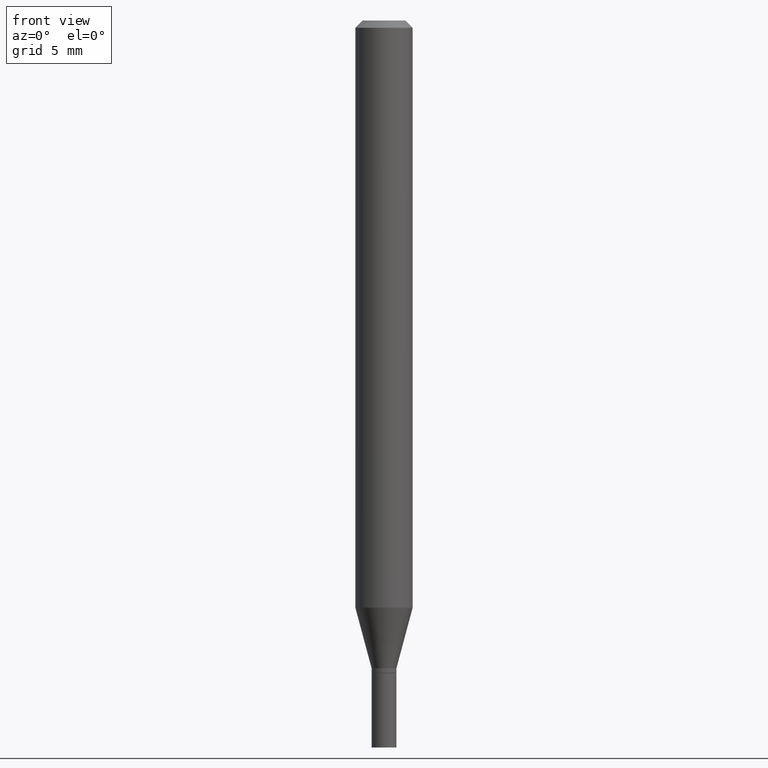
[diagram: clean part render]
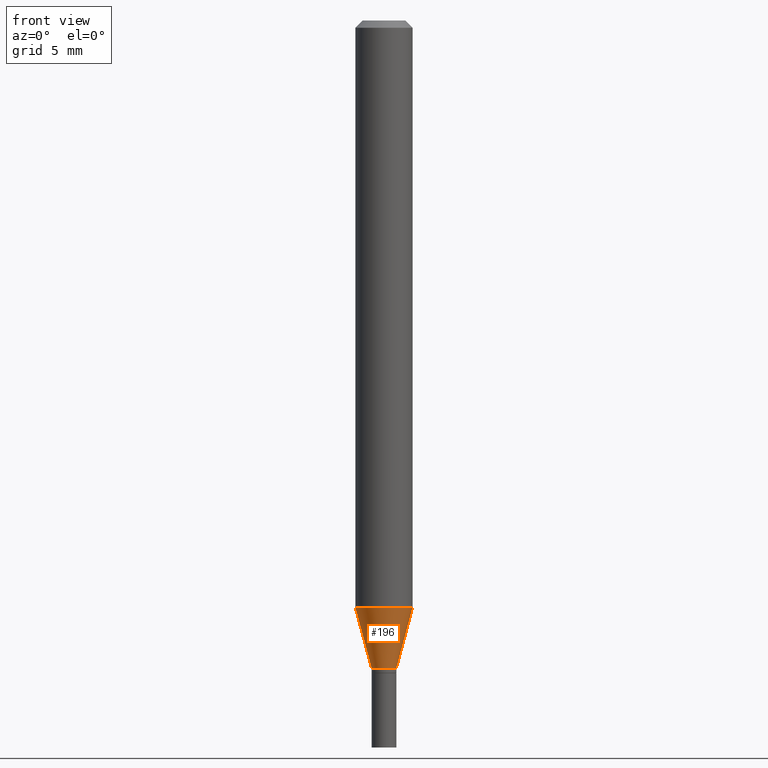
[diagram: same view with one face highlighted and labeled with its STEP entity id]
A machine part, front view. The second image highlights one B-rep face of the part: STEP entity #196.
In plain terms, the highlighted conical surface has half-angle 15 deg.
Its self-contained STEP definition (entity closure, byte-faithful):
#24 = CARTESIAN_POINT ( 'NONE',  ( 0.02559999999999991796, -4.845128653912631909E-15, -1.336500000000000021 ) ) ;
#35 = CIRCLE ( 'NONE', #214, 0.05904999999999999832 ) ;
#97 = LINE ( 'NONE', #447, #149 ) ;
#102 = CONICAL_SURFACE ( 'NONE', #457, 0.02559999999999991796, 0.2617993877991497409 ) ;
#115 = EDGE_CURVE ( 'NONE', #388, #460, #97, .T. ) ;
#116 = CARTESIAN_POINT ( 'NONE',  ( -0.05904999999999999832, -3.810922920551955991E-15, -1.211662900486820904 ) ) ;
#124 = DIRECTION ( 'NONE',  ( 1.000000000000000000, -6.982962677686249356E-15, 0.000000000000000000 ) ) ;
#138 = CARTESIAN_POINT ( 'NONE',  ( 2.963083826752325828E-29, -4.230498406018294695E-15, -1.211662900486820904 ) ) ;
#149 = VECTOR ( 'NONE', #408, 39.37007874015748143 ) ;
#163 = CARTESIAN_POINT ( 'NONE',  ( 3.268369059466435044E-29, -4.666364809363864422E-15, -1.336500000000000021 ) ) ;
#167 = DIRECTION ( 'NONE',  ( 1.000000000000000000, -6.982962677686249356E-15, 0.000000000000000000 ) ) ;
#176 = ORIENTED_EDGE ( 'NONE', *, *, #221, .T. ) ;
#196 = ADVANCED_FACE ( 'NONE', ( #440 ), #102, .T. ) ;
#198 = DIRECTION ( 'NONE',  ( -2.445468806185136597E-29, 3.491481338843145583E-15, 1.000000000000000000 ) ) ;
#199 = CARTESIAN_POINT ( 'NONE',  ( 3.268369059466435044E-29, -4.666364809363864422E-15, -1.336500000000000021 ) ) ;
#205 = DIRECTION ( 'NONE',  ( 1.000000000000000000, -6.982962677686273021E-15, 0.000000000000000000 ) ) ;
#210 = VERTEX_POINT ( 'NONE', #232 ) ;
#211 = LINE ( 'NONE', #24, #434 ) ;
#212 = ORIENTED_EDGE ( 'NONE', *, *, #370, .T. ) ;
#214 = AXIS2_PLACEMENT_3D ( 'NONE', #138, #462, #205 ) ;
#221 = EDGE_CURVE ( 'NONE', #388, #210, #222, .T. ) ;
#222 = CIRCLE ( 'NONE', #411, 0.02559999999999991796 ) ;
#232 = CARTESIAN_POINT ( 'NONE',  ( 0.02559999999999991796, -4.845128653912631909E-15, -1.336500000000000021 ) ) ;
#238 = DIRECTION ( 'NONE',  ( 0.2588190451025210725, 1.565188264969624137E-15, 0.9659258262890682012 ) ) ;
#277 = ORIENTED_EDGE ( 'NONE', *, *, #115, .F. ) ;
#309 = EDGE_CURVE ( 'NONE', #460, #319, #35, .T. ) ;
#319 = VERTEX_POINT ( 'NONE', #385 ) ;
#346 = DIRECTION ( 'NONE',  ( -2.445468806185136597E-29, 3.491481338843145583E-15, 1.000000000000000000 ) ) ;
#353 = ORIENTED_EDGE ( 'NONE', *, *, #309, .F. ) ;
#370 = EDGE_CURVE ( 'NONE', #210, #319, #211, .T. ) ;
#381 = CARTESIAN_POINT ( 'NONE',  ( -0.02559999999999991796, -4.147694394780617933E-15, -1.336500000000000021 ) ) ;
#385 = CARTESIAN_POINT ( 'NONE',  ( 0.05904999999999999832, -4.642842352135668037E-15, -1.211662900486820904 ) ) ;
#388 = VERTEX_POINT ( 'NONE', #381 ) ;
#408 = DIRECTION ( 'NONE',  ( -0.2588190451025210725, 5.211531920934548675E-15, 0.9659258262890682012 ) ) ;
#411 = AXIS2_PLACEMENT_3D ( 'NONE', #199, #346, #167 ) ;
#418 = EDGE_LOOP ( 'NONE', ( #277, #176, #212, #353 ) ) ;
#434 = VECTOR ( 'NONE', #238, 39.37007874015748143 ) ;
#440 = FACE_OUTER_BOUND ( 'NONE', #418, .T. ) ;
#447 = CARTESIAN_POINT ( 'NONE',  ( -0.02559999999999991796, -4.484465869009279875E-15, -1.336500000000000021 ) ) ;
#457 = AXIS2_PLACEMENT_3D ( 'NONE', #163, #198, #124 ) ;
#460 = VERTEX_POINT ( 'NONE', #116 ) ;
#462 = DIRECTION ( 'NONE',  ( -2.445468806185136597E-29, 3.491481338843145583E-15, 1.000000000000000000 ) ) ;